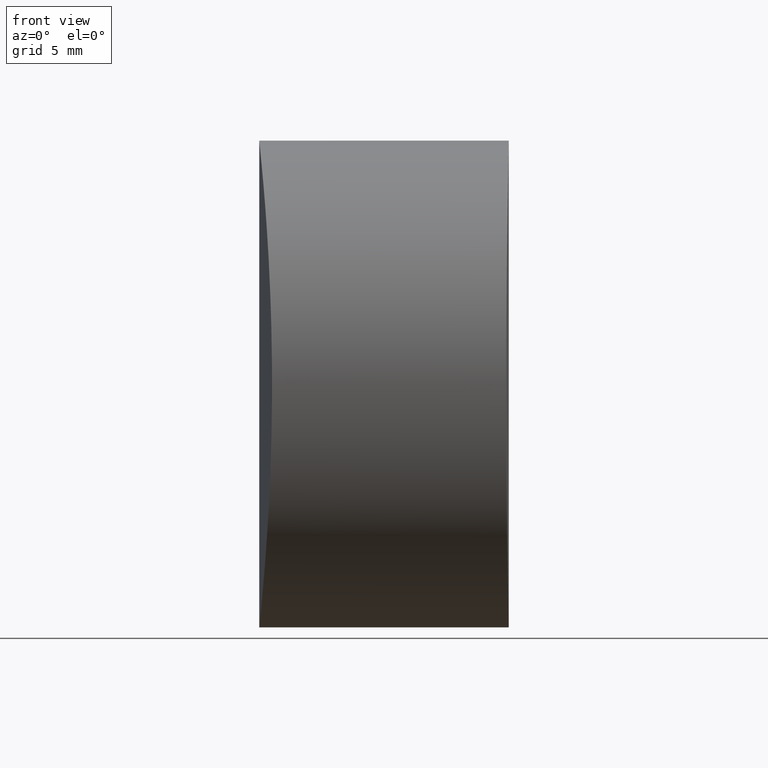
[diagram: clean part render]
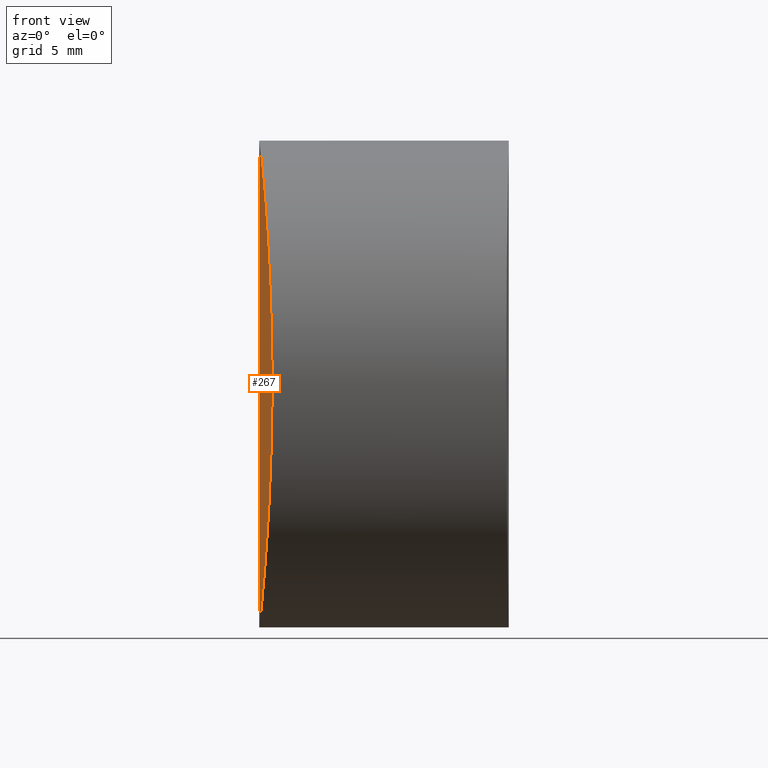
[diagram: same view with one face highlighted and labeled with its STEP entity id]
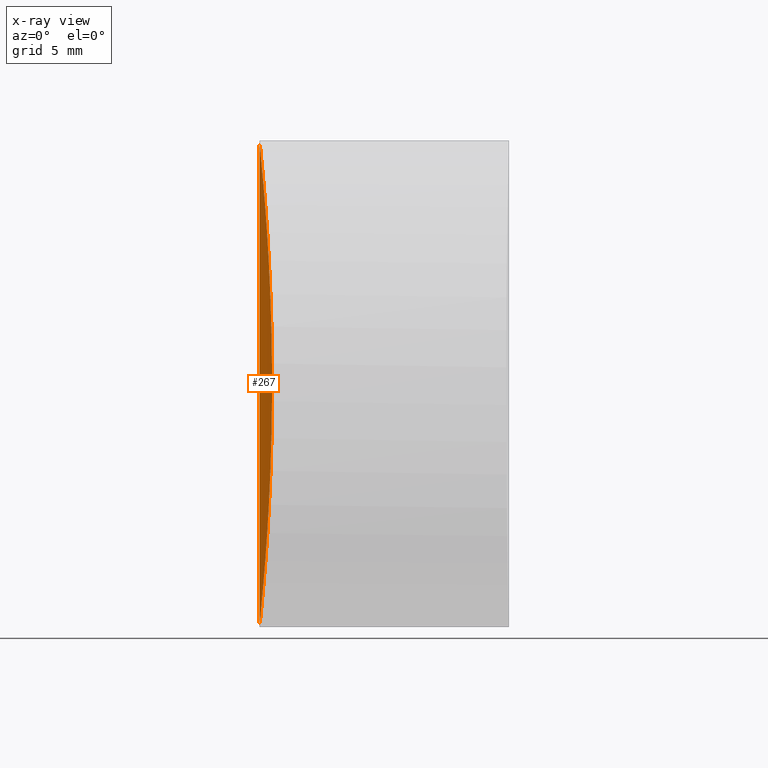
[diagram: x-ray of the same camera — body ghosted, the highlighted face saturated]
A machine part, front view. The second image highlights one B-rep face of the part: STEP entity #267.
The next image is the same camera in x-ray: the body ghosted, the highlighted face saturated — about 0% of this face is hidden behind the body in this view.
In plain terms, the highlighted cylindrical surface (partial cylindrical patch) has radius 111.601 mm, axis along (-0, -0, -1).
Its self-contained STEP definition (entity closure, byte-faithful):
#5 = VECTOR ( 'NONE', #110, 1000.000000000000000 ) ;
#14 = CARTESIAN_POINT ( 'NONE',  ( 0.1183678632362985539, -5.187292682332105720, 1.184803997140385645 ) ) ;
#18 = CARTESIAN_POINT ( 'NONE',  ( 0.3469321303991318994, -8.809534016637980969, 3.962873828719445157 ) ) ;
#23 = EDGE_LOOP ( 'NONE', ( #312, #305 ) ) ;
#24 = CARTESIAN_POINT ( 'NONE',  ( 0.000000000000000000, -6.222475526406026341E-15, 23.39999999999999858 ) ) ;
#25 = CARTESIAN_POINT ( 'NONE',  ( 0.4065925144657912549, -9.520096840979649144, 18.51202354110370862 ) ) ;
#40 = CARTESIAN_POINT ( 'NONE',  ( 0.2270725911171075917, -7.121835755371203724, 2.409265503929381325 ) ) ;
#45 = CARTESIAN_POINT ( 'NONE',  ( 0.4429157776712663308, -9.935270681339382293, 5.509028617446702469 ) ) ;
#49 = CARTESIAN_POINT ( 'NONE',  ( 0.008030562997224557908, -1.537548285531460834, 23.32412236185496468 ) ) ;
#56 = CARTESIAN_POINT ( 'NONE',  ( 0.2273798996619920687, -7.149076387608455541, 20.99363352985964326 ) ) ;
#68 = CARTESIAN_POINT ( 'NONE',  ( 0.5838816696899644665, -11.40123753363526937, 14.35462386032439319 ) ) ;
#70 = CARTESIAN_POINT ( 'NONE',  ( -2.055594444541967625E-31, -3.072833831928743013E-46, -1.734723475976806503E-15 ) ) ;
#76 = CARTESIAN_POINT ( 'NONE',  ( 0.6149960005721289980, -11.70000501021281103, 10.92699066513619499 ) ) ;
#78 = DIRECTION ( 'NONE',  ( -1.000000000000000000, 0.000000000000000000, 0.000000000000000000 ) ) ;
#81 = CARTESIAN_POINT ( 'NONE',  ( 0.3273140791562932916, -8.545349596066305509, 19.70076560634137053 ) ) ;
#84 = CYLINDRICAL_SURFACE ( 'NONE', #307, 111.6009999999999991 ) ;
#99 = CARTESIAN_POINT ( 'NONE',  ( 0.07570835377631118801, -4.125293002083425087, 0.7446909795001992460 ) ) ;
#100 = CARTESIAN_POINT ( 'NONE',  ( 0.4944676436467626002, -10.49545339342668093, 6.515236233303700608 ) ) ;
#101 = CARTESIAN_POINT ( 'NONE',  ( 0.6149949441801070282, -11.69999498929573534, 12.47316099309656146 ) ) ;
#110 = DIRECTION ( 'NONE',  ( -0.000000000000000000, -0.000000000000000000, -1.000000000000000000 ) ) ;
#127 = CARTESIAN_POINT ( 'NONE',  ( 0.1520761672456586722, -5.858820299270034226, 1.543825901058585082 ) ) ;
#128 = CARTESIAN_POINT ( 'NONE',  ( 0.04040531924371108807, -3.025237654446277347, 0.3913592667363179900 ) ) ;
#131 = CARTESIAN_POINT ( 'NONE',  ( 0.03094927156193035683, -2.654574998565971011, 0.2987509588422271323 ) ) ;
#135 = FACE_OUTER_BOUND ( 'NONE', #23, .T. ) ;
#137 = CARTESIAN_POINT ( 'NONE',  ( 0.2672154664083358777, -7.737152638149709105, 20.50951014985479759 ) ) ;
#138 = CARTESIAN_POINT ( 'NONE',  ( 0.04098654489844939797, -3.046419870238552097, 23.00290801411233232 ) ) ;
#154 = CARTESIAN_POINT ( 'NONE',  ( 0.2667514044845875065, -7.717340259284547699, 2.897673527675414196 ) ) ;
#156 = CARTESIAN_POINT ( 'NONE',  ( 0.2868331750334988661, -8.000783811261305445, 3.154667288477693621 ) ) ;
#158 = CARTESIAN_POINT ( 'NONE',  ( 0.5737973138030435516, -11.30292195613089845, 8.653631668171534841 ) ) ;
#159 = CARTESIAN_POINT ( 'NONE',  ( 3.335192229813807585E-17, -0.7730918758208660257, -1.821967869544000029E-15 ) ) ;
#162 = CARTESIAN_POINT ( 'NONE',  ( 0.1199926479446812855, -5.184805079346199719, 22.19543294855675342 ) ) ;
#163 = CARTESIAN_POINT ( 'NONE',  ( 111.6009999999999991, 0.000000000000000000, 23.39999999999999858 ) ) ;
#164 = CARTESIAN_POINT ( 'NONE',  ( 0.5743786875526982749, -11.30862868015790035, 14.72528217526728511 ) ) ;
#182 = CARTESIAN_POINT ( 'NONE',  ( 0.008026432231285525465, -1.533166390283023039, 0.07587021296834725592 ) ) ;
#185 = CARTESIAN_POINT ( 'NONE',  ( 0.3868125775736650507, -9.293657995034442010, 4.550955185786344614 ) ) ;
#188 = CARTESIAN_POINT ( 'NONE',  ( 0.4960904767856524344, -10.51518821281336358, 16.88730686925521951 ) ) ;
#189 = CARTESIAN_POINT ( 'NONE',  ( 0.08893099164742153395, -4.495881703686930742, 22.52179341668331958 ) ) ;
#192 = CARTESIAN_POINT ( 'NONE',  ( 5.378659215064789897E-17, -0.7731043793747701676, 23.40000000000000213 ) ) ;
#194 = CARTESIAN_POINT ( 'NONE',  ( 0.5389165305835631470, -10.95529744053119892, 15.82532324990037331 ) ) ;
#195 = VERTEX_POINT ( 'NONE', #70 ) ;
#197 = EDGE_CURVE ( 'NONE', #195, #278, #233, .T. ) ;
#211 = CARTESIAN_POINT ( 'NONE',  ( 0.6069221283020246327, -11.62412117405785850, 13.23322779896795609 ) ) ;
#222 = EDGE_CURVE ( 'NONE', #278, #195, #358, .T. ) ;
#233 = B_SPLINE_CURVE_WITH_KNOTS ( 'NONE', 3,
 ( #295, #159, #182, #131, #128, #298, #99, #14, #127, #237, #40, #154, #156, #18, #185, #45, #353, #100, #357, #354, #158, #240, #356, #76, #101, #211, #68, #164, #334, #194, #188, #243, #25, #311, #275, #81, #137, #56, #277, #331, #162, #189, #276, #138, #304, #49, #192, #336 ),
 .UNSPECIFIED., .F., .F.,
 ( 4, 2, 2, 2, 2, 2, 2, 2, 2, 1, 2, 2, 2, 2, 2, 2, 2, 2, 2, 2, 2, 1, 2, 2, 4 ),
 ( -4.770489558936219510E-18, 0.002286235614820190162, 0.003429353422230288495, 0.004572471229640386395, 0.006858706844460583929, 0.008001824651870683563, 0.009144942459280783198, 0.01143117807410097726, 0.01257429588151107169, 0.01371741368892116959, 0.01486053149633126402, 0.01600364930374136019, 0.01828988491856154211, 0.02057612053338173097, 0.02171923834079182020, 0.02286235614820190942, 0.02514859176302208441, 0.02629170957043217363, 0.02743482737784226286, 0.02972106299266244131, 0.03086418080007253054, 0.03200729860748261629, 0.03315041641489270552, 0.03429353422230279475, 0.03657976983712297320 ),
 .UNSPECIFIED. ) ;
#237 = CARTESIAN_POINT ( 'NONE',  ( 0.2076395379942410357, -6.812029464572753490, 2.179907223110717496 ) ) ;
#240 = CARTESIAN_POINT ( 'NONE',  ( 0.5834933890307864024, -11.39746447644348670, 9.028600685628276779 ) ) ;
#243 = CARTESIAN_POINT ( 'NONE',  ( 0.4622732054405329638, -10.15617069406082784, 17.55882506803429877 ) ) ;
#267 = ADVANCED_FACE ( 'NONE', ( #135 ), #84, .T. ) ;
#275 = CARTESIAN_POINT ( 'NONE',  ( 0.3474066096523887870, -8.802339859386311360, 19.41732473445403784 ) ) ;
#276 = CARTESIAN_POINT ( 'NONE',  ( 0.06337877766237776100, -3.778402862396141426, 22.77971459067000026 ) ) ;
#277 = CARTESIAN_POINT ( 'NONE',  ( 0.1713946055545042535, -6.191007934959588788, 21.63524786278961187 ) ) ;
#278 = VERTEX_POINT ( 'NONE', #24 ) ;
#295 = CARTESIAN_POINT ( 'NONE',  ( -2.055594444541967625E-31, -3.072833831928743013E-46, -1.734723475976806503E-15 ) ) ;
#298 = CARTESIAN_POINT ( 'NONE',  ( 0.06275699762295715300, -3.760145786077534247, 0.6140304092355758359 ) ) ;
#304 = CARTESIAN_POINT ( 'NONE',  ( 0.03133808555167851007, -2.671453100887956733, 23.09745178463964876 ) ) ;
#305 = ORIENTED_EDGE ( 'NONE', *, *, #222, .T. ) ;
#307 = AXIS2_PLACEMENT_3D ( 'NONE', #163, #310, #78 ) ;
#310 = DIRECTION ( 'NONE',  ( -0.000000000000000000, -0.000000000000000000, -1.000000000000000000 ) ) ;
#311 = CARTESIAN_POINT ( 'NONE',  ( 0.3871278063121936230, -9.290740602934352665, 18.82182751168154766 ) ) ;
#312 = ORIENTED_EDGE ( 'NONE', *, *, #197, .T. ) ;
#331 = CARTESIAN_POINT ( 'NONE',  ( 0.1534059246781145636, -5.859264353321531615, 21.83436419941381956 ) ) ;
#334 = CARTESIAN_POINT ( 'NONE',  ( 0.5519240365361394174, -11.08595734901141761, 15.46018144795959515 ) ) ;
#336 = CARTESIAN_POINT ( 'NONE',  ( 0.000000000000000000, -6.222475526406026341E-15, 23.39999999999999858 ) ) ;
#353 = CARTESIAN_POINT ( 'NONE',  ( 0.4609519144994478901, -10.13438630305681443, 5.840773812997757553 ) ) ;
#354 = CARTESIAN_POINT ( 'NONE',  ( 0.5513023669512989722, -11.07973089369521880, 7.921644791334586877 ) ) ;
#356 = CARTESIAN_POINT ( 'NONE',  ( 0.6069197098082063091, -11.62413093388000185, 10.16251400446008546 ) ) ;
#357 = CARTESIAN_POINT ( 'NONE',  ( 0.5256396624296226783, -10.82181193141816777, 7.204162607265826246 ) ) ;
#358 = LINE ( 'NONE', #365, #5 ) ;
#365 = CARTESIAN_POINT ( 'NONE',  ( 0.000000000000000000, 0.000000000000000000, 23.39999999999999858 ) ) ;